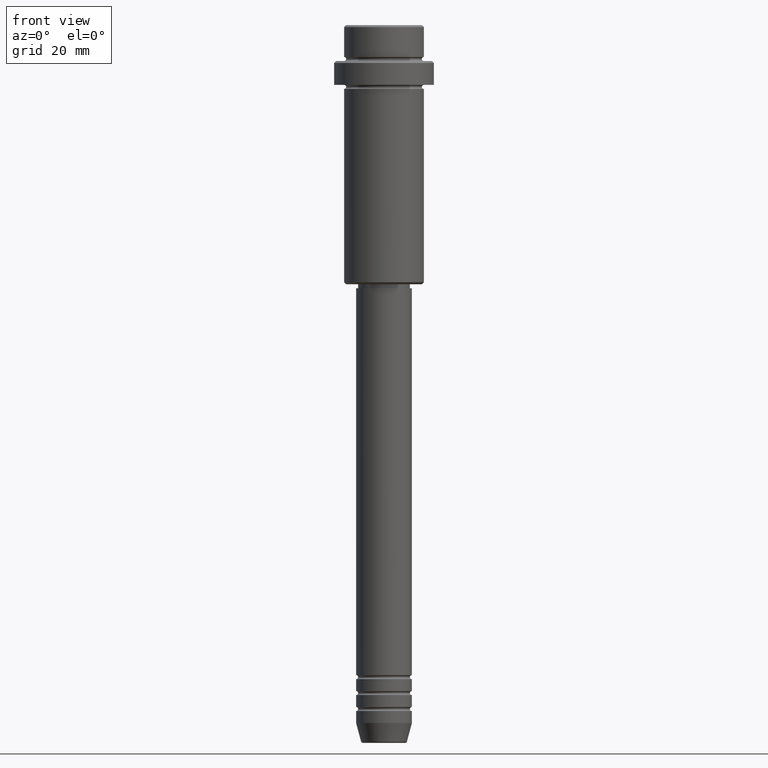
[diagram: clean part render]
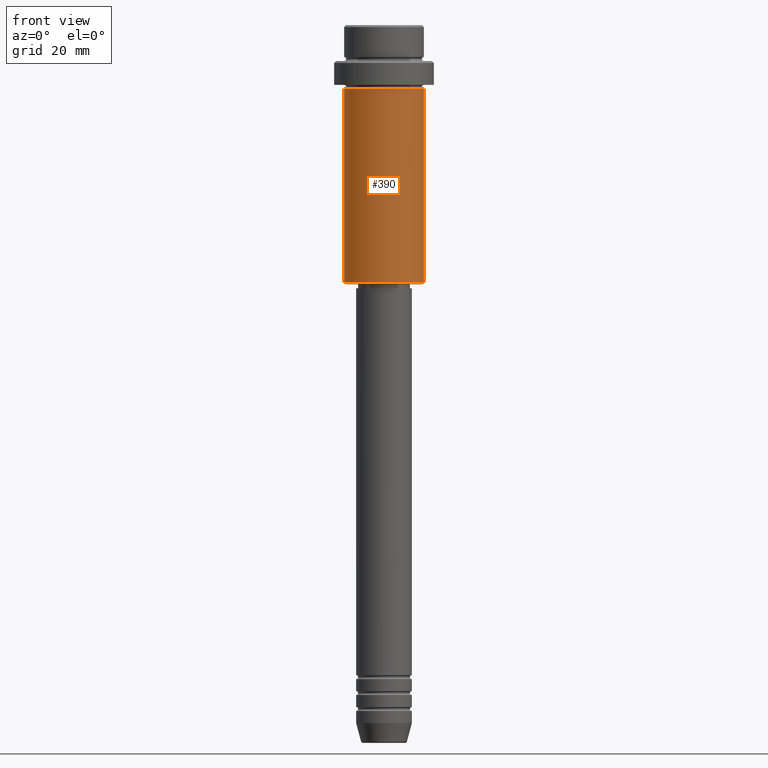
[diagram: same view with one face highlighted and labeled with its STEP entity id]
A machine part, front view. The second image highlights one B-rep face of the part: STEP entity #390.
In plain terms, the highlighted cylindrical surface (partial cylindrical patch) has radius 10 mm, axis along (-0, -0, 1).
Its self-contained STEP definition (entity closure, byte-faithful):
#72 = CIRCLE ( 'NONE', #957, 10.00000000000000000 ) ;
#104 = DIRECTION ( 'NONE',  ( 1.000000000000000000, 0.000000000000000000, 0.000000000000000000 ) ) ;
#109 = LINE ( 'NONE', #791, #545 ) ;
#110 = CARTESIAN_POINT ( 'NONE',  ( 10.00000000000000000, 0.000000000000000000, -16.00000000000000000 ) ) ;
#209 = AXIS2_PLACEMENT_3D ( 'NONE', #698, #803, #583 ) ;
#217 = DIRECTION ( 'NONE',  ( -0.000000000000000000, -0.000000000000000000, 1.000000000000000000 ) ) ;
#230 = AXIS2_PLACEMENT_3D ( 'NONE', #736, #761, #104 ) ;
#256 = ORIENTED_EDGE ( 'NONE', *, *, #732, .F. ) ;
#303 = VECTOR ( 'NONE', #217, 1000.000000000000000 ) ;
#312 = VERTEX_POINT ( 'NONE', #1084 ) ;
#342 = DIRECTION ( 'NONE',  ( -0.000000000000000000, -0.000000000000000000, 1.000000000000000000 ) ) ;
#390 = ADVANCED_FACE ( 'NONE', ( #742 ), #872, .T. ) ;
#395 = ORIENTED_EDGE ( 'NONE', *, *, #1240, .T. ) ;
#447 = VERTEX_POINT ( 'NONE', #1417 ) ;
#465 = DIRECTION ( 'NONE',  ( -0.000000000000000000, -0.000000000000000000, 1.000000000000000000 ) ) ;
#535 = LINE ( 'NONE', #1416, #303 ) ;
#545 = VECTOR ( 'NONE', #342, 1000.000000000000000 ) ;
#578 = CARTESIAN_POINT ( 'NONE',  ( -10.00000000000000000, 1.224646799147353256E-15, -16.00000000000000000 ) ) ;
#583 = DIRECTION ( 'NONE',  ( 1.000000000000000000, 0.000000000000000000, 0.000000000000000000 ) ) ;
#698 = CARTESIAN_POINT ( 'NONE',  ( 0.000000000000000000, 0.000000000000000000, -16.00000000000000000 ) ) ;
#732 = EDGE_CURVE ( 'NONE', #447, #790, #535, .T. ) ;
#736 = CARTESIAN_POINT ( 'NONE',  ( 0.000000000000000000, 0.000000000000000000, 0.000000000000000000 ) ) ;
#742 = FACE_OUTER_BOUND ( 'NONE', #997, .T. ) ;
#761 = DIRECTION ( 'NONE',  ( -0.000000000000000000, -0.000000000000000000, 1.000000000000000000 ) ) ;
#790 = VERTEX_POINT ( 'NONE', #578 ) ;
#791 = CARTESIAN_POINT ( 'NONE',  ( 10.00000000000000000, 0.000000000000000000, 0.000000000000000000 ) ) ;
#803 = DIRECTION ( 'NONE',  ( -0.000000000000000000, -0.000000000000000000, 1.000000000000000000 ) ) ;
#819 = CARTESIAN_POINT ( 'NONE',  ( 0.000000000000000000, 0.000000000000000000, -64.50000000000000000 ) ) ;
#835 = EDGE_CURVE ( 'NONE', #312, #1386, #109, .T. ) ;
#872 = CYLINDRICAL_SURFACE ( 'NONE', #230, 10.00000000000000000 ) ;
#957 = AXIS2_PLACEMENT_3D ( 'NONE', #819, #465, #1139 ) ;
#980 = ORIENTED_EDGE ( 'NONE', *, *, #835, .T. ) ;
#997 = EDGE_LOOP ( 'NONE', ( #256, #395, #980, #1043 ) ) ;
#1043 = ORIENTED_EDGE ( 'NONE', *, *, #1251, .F. ) ;
#1051 = CIRCLE ( 'NONE', #209, 10.00000000000000000 ) ;
#1084 = CARTESIAN_POINT ( 'NONE',  ( 10.00000000000000000, 0.000000000000000000, -64.50000000000000000 ) ) ;
#1139 = DIRECTION ( 'NONE',  ( -1.000000000000000000, 0.000000000000000000, 0.000000000000000000 ) ) ;
#1240 = EDGE_CURVE ( 'NONE', #447, #312, #72, .T. ) ;
#1251 = EDGE_CURVE ( 'NONE', #790, #1386, #1051, .T. ) ;
#1386 = VERTEX_POINT ( 'NONE', #110 ) ;
#1416 = CARTESIAN_POINT ( 'NONE',  ( -10.00000000000000000, 1.224646799147353256E-15, 0.000000000000000000 ) ) ;
#1417 = CARTESIAN_POINT ( 'NONE',  ( -10.00000000000000000, 1.224646799147353256E-15, -64.50000000000000000 ) ) ;